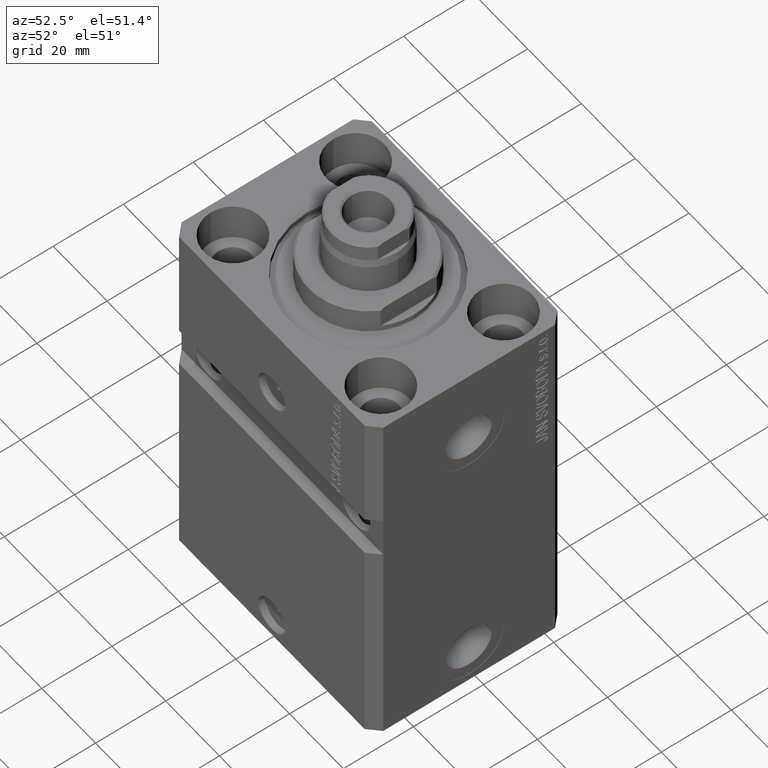
[diagram: clean part render]
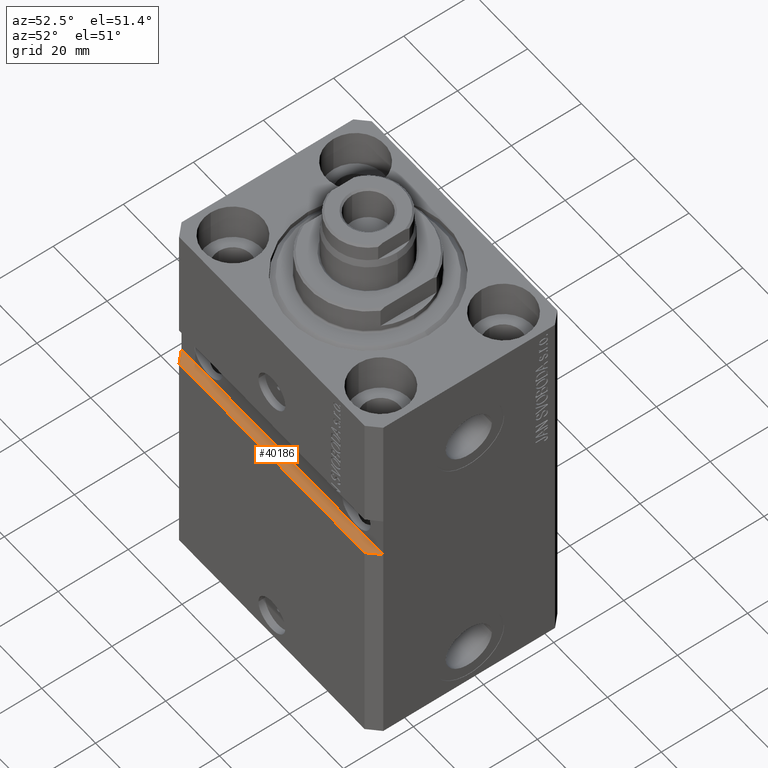
[diagram: same view with one face highlighted and labeled with its STEP entity id]
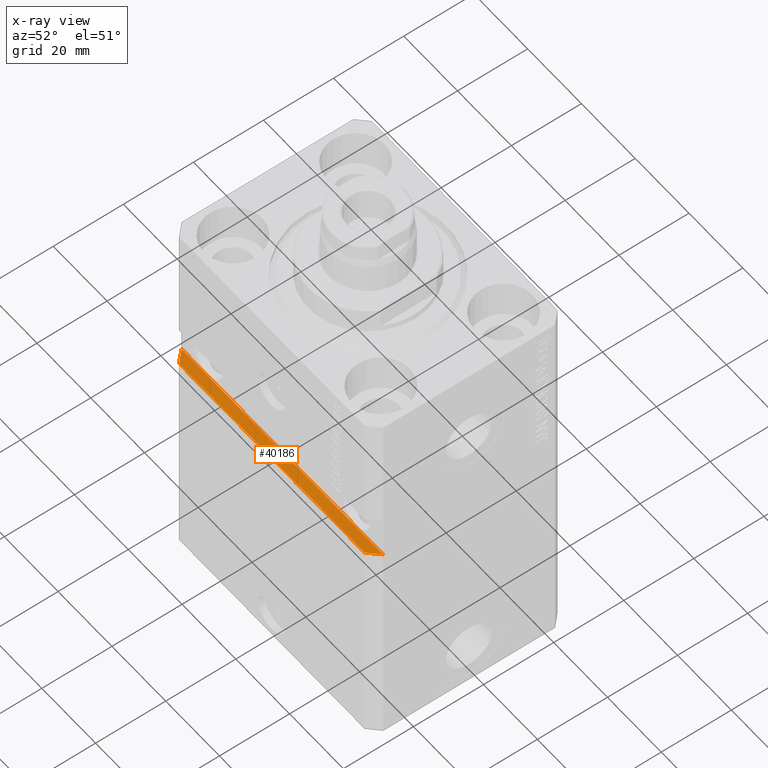
[diagram: x-ray of the same camera — body ghosted, the highlighted face saturated]
A machine part, auxiliary view. The second image highlights one B-rep face of the part: STEP entity #40186.
The next image is the same camera in x-ray: the body ghosted, the highlighted face saturated — about 0% of this face is hidden behind the body in this view.
In plain terms, the highlighted planar face has unit normal (-0, -0, -1).
Its self-contained STEP definition (entity closure, byte-faithful):
#78 = LINE ( 'NONE', #6943, #9792 ) ;
#3379 = CARTESIAN_POINT ( 'NONE',  ( -37.50000000000000000, -24.50000000000000000, -46.00000000000000000 ) ) ;
#5957 = ORIENTED_EDGE ( 'NONE', *, *, #46293, .F. ) ;
#6271 = DIRECTION ( 'NONE',  ( 1.000000000000000000, 9.251858538542972814E-17, -9.251858538542972814E-17 ) ) ;
#6929 = DIRECTION ( 'NONE',  ( -9.251858538542972814E-17, -1.088096013778228463E-32, -1.000000000000000000 ) ) ;
#6943 = CARTESIAN_POINT ( 'NONE',  ( -37.50000000000000000, -24.50000000000000000, -46.00000000000000000 ) ) ;
#7366 = VECTOR ( 'NONE', #20553, 1000.000000000000000 ) ;
#7622 = FACE_OUTER_BOUND ( 'NONE', #25238, .T. ) ;
#8576 = VECTOR ( 'NONE', #39634, 1000.000000000000114 ) ;
#9494 = CARTESIAN_POINT ( 'NONE',  ( 37.49999999999999289, -24.49999999999999289, -46.00000000000000711 ) ) ;
#9792 = VECTOR ( 'NONE', #46487, 1000.000000000000000 ) ;
#12945 = VECTOR ( 'NONE', #6271, 1000.000000000000000 ) ;
#12985 = CARTESIAN_POINT ( 'NONE',  ( -37.49999999999999289, -24.50000000000000355, -46.00000000000000000 ) ) ;
#13351 = LINE ( 'NONE', #27801, #12945 ) ;
#14305 = LINE ( 'NONE', #43193, #8576 ) ;
#15695 = CARTESIAN_POINT ( 'NONE',  ( 34.49999999999999289, -27.49999999999999289, -46.00000000000000711 ) ) ;
#18041 = DIRECTION ( 'NONE',  ( -1.000000000000000000, 0.000000000000000000, 9.251858538542972814E-17 ) ) ;
#18693 = CARTESIAN_POINT ( 'NONE',  ( -37.50000000000000000, -24.50000000000000000, -46.00000000000000000 ) ) ;
#19574 = VERTEX_POINT ( 'NONE', #9494 ) ;
#20553 = DIRECTION ( 'NONE',  ( 0.7071067811865483499, -0.7071067811865466846, -6.542051911182403718E-17 ) ) ;
#21532 = EDGE_CURVE ( 'NONE', #32181, #43276, #13351, .T. ) ;
#23309 = VERTEX_POINT ( 'NONE', #18693 ) ;
#24584 = LINE ( 'NONE', #12985, #7366 ) ;
#25238 = EDGE_LOOP ( 'NONE', ( #30294, #5957, #30520, #35591 ) ) ;
#27801 = CARTESIAN_POINT ( 'NONE',  ( -37.50000000000000000, -27.50000000000000000, -46.00000000000000000 ) ) ;
#29288 = CARTESIAN_POINT ( 'NONE',  ( -34.49999999999998579, -27.50000000000000000, -46.00000000000000000 ) ) ;
#30054 = EDGE_CURVE ( 'NONE', #43276, #19574, #14305, .T. ) ;
#30294 = ORIENTED_EDGE ( 'NONE', *, *, #30054, .T. ) ;
#30520 = ORIENTED_EDGE ( 'NONE', *, *, #37559, .T. ) ;
#32181 = VERTEX_POINT ( 'NONE', #29288 ) ;
#35591 = ORIENTED_EDGE ( 'NONE', *, *, #21532, .T. ) ;
#36024 = PLANE ( 'NONE',  #42243 ) ;
#37559 = EDGE_CURVE ( 'NONE', #23309, #32181, #24584, .T. ) ;
#39634 = DIRECTION ( 'NONE',  ( 0.7071067811865474617, 0.7071067811865474617, -6.542051911182397555E-17 ) ) ;
#40186 = ADVANCED_FACE ( 'NONE', ( #7622 ), #36024, .F. ) ;
#42243 = AXIS2_PLACEMENT_3D ( 'NONE', #3379, #6929, #18041 ) ;
#43193 = CARTESIAN_POINT ( 'NONE',  ( 34.49999999999999289, -27.49999999999999289, -46.00000000000000000 ) ) ;
#43276 = VERTEX_POINT ( 'NONE', #15695 ) ;
#46293 = EDGE_CURVE ( 'NONE', #23309, #19574, #78, .T. ) ;
#46487 = DIRECTION ( 'NONE',  ( 1.000000000000000000, 9.251858538542972814E-17, -9.251858538542972814E-17 ) ) ;